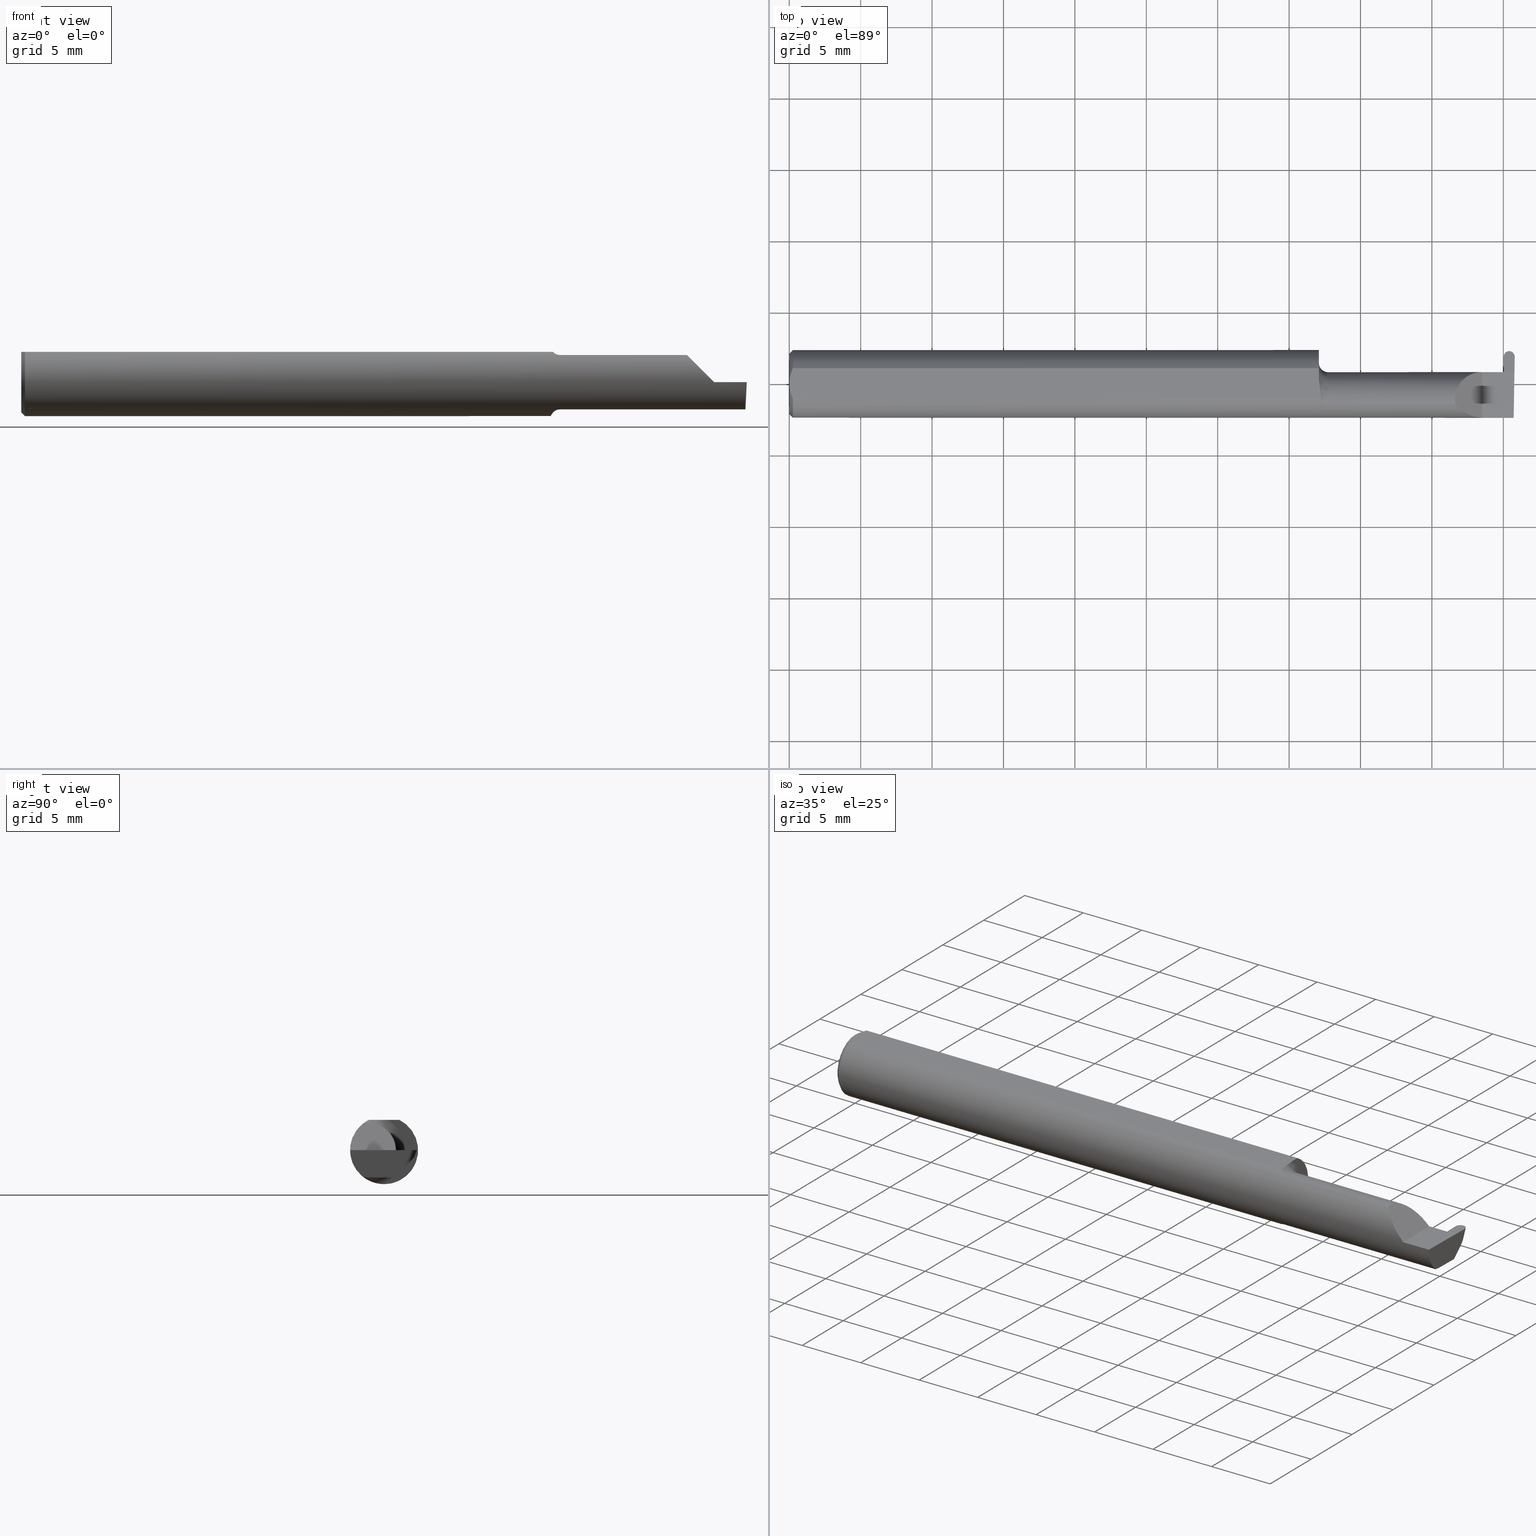
[diagram: canonical four-view strip — front | top / right | iso, engineering-drawing reading convention]
A machine part, canonical four-view strip (front | top / right | iso — engineering-drawing reading convention). The complete STEP part file that produces these views, byte-faithful:
ISO-10303-21;
HEADER;
FILE_DESCRIPTION (( 'STEP AP203' ),
    '1' );
FILE_NAME ('221834-GFR030K-8.STEP',
    '2024-06-17T19:39:33',
    ( '' ),
    ( '' ),
    'SwSTEP 2.0',
    'SolidWorks 2022',
    '' );
FILE_SCHEMA (( 'CONFIG_CONTROL_DESIGN' ));
ENDSEC;

DATA;
#1 = COORDINATED_UNIVERSAL_TIME_OFFSET ( 8, 0, .BEHIND. ) ;
#2 = ORIENTED_EDGE ( 'NONE', *, *, #592, .T. ) ;
#3 = B_SPLINE_CURVE_WITH_KNOTS ( 'NONE', 3,
 ( #567, #467, #75, #188 ),
 .UNSPECIFIED., .F., .F.,
 ( 4, 4 ),
 ( 0.000000000000000000, 1.000000000000000000 ),
 .UNSPECIFIED. ) ;
#4 = CARTESIAN_POINT ( 'NONE',  ( 1.969493928509964853, 0.1196567895122383207, 0.01717222396329657827 ) ) ;
#5 = DATE_AND_TIME ( #542, #233 ) ;
#6 = ORIENTED_EDGE ( 'NONE', *, *, #359, .F. ) ;
#7 = CARTESIAN_POINT ( 'NONE',  ( 1.984733980000000342, 0.08688529186597530873, -0.009656581234206245562 ) ) ;
#8 = DIRECTION ( 'NONE',  ( 0.9992386149554827179, 0.01744177490282312198, 0.03489949670250104552 ) ) ;
#9 = EDGE_CURVE ( 'NONE', #570, #230, #616, .T. ) ;
#10 = ORIENTED_EDGE ( 'NONE', *, *, #44, .T. ) ;
#11 = EDGE_LOOP ( 'NONE', ( #451, #492, #298 ) ) ;
#12 = APPROVAL_ROLE ( '' ) ;
#13 = ORIENTED_EDGE ( 'NONE', *, *, #642, .T. ) ;
#14 = EDGE_CURVE ( 'NONE', #170, #53, #31, .T. ) ;
#15 = CARTESIAN_POINT ( 'NONE',  ( 1.484999999999999876, -0.05810704225352104207, 0.07337936794867834511 ) ) ;
#16 = VERTEX_POINT ( 'NONE', #133 ) ;
#17 = VECTOR ( 'NONE', #671, 39.37007874015748854 ) ;
#18 = CARTESIAN_POINT ( 'NONE',  ( 0.000000000000000000, 0.000000000000000000, 0.000000000000000000 ) ) ;
#19 = CARTESIAN_POINT ( 'NONE',  ( 1.484999999999999876, -0.04260000000000005449, 0.000000000000000000 ) ) ;
#20 = CIRCLE ( 'NONE', #223, 0.09999999999999999167 ) ;
#21 = EDGE_CURVE ( 'NONE', #496, #45, #365, .T. ) ;
#22 = DIRECTION ( 'NONE',  ( 3.351349113377345711E-17, -1.000000000000000000, 0.000000000000000000 ) ) ;
#23 = CARTESIAN_POINT ( 'NONE',  ( 1.910000000000000142, -0.09360000000000005815, 1.102182119232621301E-17 ) ) ;
#24 = CARTESIAN_POINT ( 'NONE',  ( 1.981957002351928621, 0.04977477292115689567, -0.06702887695685075253 ) ) ;
#25 = CARTESIAN_POINT ( 'NONE',  ( 1.971325961646301028, 0.05785528259492387498, -0.04462928295401853707 ) ) ;
#26 = FACE_OUTER_BOUND ( 'NONE', #553, .T. ) ;
#27 = VERTEX_POINT ( 'NONE', #291 ) ;
#28 = DIRECTION ( 'NONE',  ( -0.03549161113179509497, 0.03487750912278161919, 0.9987611851171729338 ) ) ;
#29 = AXIS2_PLACEMENT_3D ( 'NONE', #147, #312, #82 ) ;
#30 = ORIENTED_EDGE ( 'NONE', *, *, #221, .F. ) ;
#31 = LINE ( 'NONE', #180, #626 ) ;
#32 = DIRECTION ( 'NONE',  ( 1.000000000000000000, 0.000000000000000000, 0.000000000000000000 ) ) ;
#33 = CARTESIAN_POINT ( 'NONE',  ( 2.000150782537319483, 0.08363908123938845751, -1.889248031255481802E-18 ) ) ;
#34 = LINE ( 'NONE', #518, #297 ) ;
#35 = DIRECTION ( 'NONE',  ( 0.000000000000000000, -1.000000000000000000, 0.000000000000000000 ) ) ;
#36 = CARTESIAN_POINT ( 'NONE',  ( 1.984733980000000342, 0.08346613280634004872, -0.01901843274260211006 ) ) ;
#37 = CARTESIAN_POINT ( 'NONE',  ( 0.01000000000000016674, -0.04209513035969864037, 0.08359999999999988274 ) ) ;
#38 = EDGE_LOOP ( 'NONE', ( #527, #118, #274, #308, #302 ) ) ;
#39 = TOROIDAL_SURFACE ( 'NONE', #449, 0.09999999999999999167, 0.02499999999999993894 ) ;
#40 = DIRECTION ( 'NONE',  ( -3.351349113377345711E-17, 1.000000000000000000, 0.000000000000000000 ) ) ;
#41 = VECTOR ( 'NONE', #655, 39.37007874015748143 ) ;
#42 = VERTEX_POINT ( 'NONE', #462 ) ;
#43 = CARTESIAN_POINT ( 'NONE',  ( 1.727233979999999836, -0.05810704225352107677, -0.07337936794867833123 ) ) ;
#44 = EDGE_CURVE ( 'NONE', #502, #691, #3, .T. ) ;
#45 = VERTEX_POINT ( 'NONE', #412 ) ;
#46 = CARTESIAN_POINT ( 'NONE',  ( 1.910000000000000142, -0.09360000000000005815, 1.102182119232621301E-17 ) ) ;
#47 = CALENDAR_DATE ( 2024, 17, 6 ) ;
#48 = VERTEX_POINT ( 'NONE', #36 ) ;
#49 = CARTESIAN_POINT ( 'NONE',  ( 0.004492168231814808177, 0.02859366993844194779, 0.08359999999999991049 ) ) ;
#50 = PLANE ( 'NONE',  #252 ) ;
#51 = CARTESIAN_POINT ( 'NONE',  ( 1.484999999999999876, -0.05810704225352104207, 0.07337936794867834511 ) ) ;
#52 = PERSON_AND_ORGANIZATION_ROLE ( 'creator' ) ;
#53 = VERTEX_POINT ( 'NONE', #25 ) ;
#54 = LINE ( 'NONE', #268, #674 ) ;
#55 = AXIS2_PLACEMENT_3D ( 'NONE', #353, #428, #192 ) ;
#56 = ORIENTED_EDGE ( 'NONE', *, *, #62, .T. ) ;
#57 = CARTESIAN_POINT ( 'NONE',  ( 1.984733980000000564, 0.08859046512939580675, -0.004971656196700772502 ) ) ;
#58 = EDGE_CURVE ( 'NONE', #48, #594, #137, .T. ) ;
#59 = ORIENTED_EDGE ( 'NONE', *, *, #680, .T. ) ;
#60 = PERSON_AND_ORGANIZATION ( #228, #405 ) ;
#61 = ORIENTED_EDGE ( 'NONE', *, *, #283, .T. ) ;
#62 = EDGE_CURVE ( 'NONE', #175, #335, #555, .T. ) ;
#63 = CARTESIAN_POINT ( 'NONE',  ( 1.984733980000000564, 0.08859046512939580675, -0.004971656196700772502 ) ) ;
#64 = ORIENTED_EDGE ( 'NONE', *, *, #21, .F. ) ;
#65 = PLANE ( 'NONE',  #210 ) ;
#66 = VERTEX_POINT ( 'NONE', #684 ) ;
#67 = CC_DESIGN_DATE_AND_TIME_ASSIGNMENT ( #612, #129, ( #276 ) ) ;
#68 =( BOUNDED_CURVE ( )  B_SPLINE_CURVE ( 3, ( #46, #381, #540, #216 ),
 .UNSPECIFIED., .F., .F. ) 
 B_SPLINE_CURVE_WITH_KNOTS ( ( 4, 4 ),
 ( 4.712388980384689674, 5.613420356061720184 ),
 .UNSPECIFIED. ) 
 CURVE ( )  GEOMETRIC_REPRESENTATION_ITEM ( )  RATIONAL_B_SPLINE_CURVE ( ( 1.000000000000000000, 0.9334817841311873199, 0.9334817841311873199, 1.000000000000000000 ) ) 
 REPRESENTATION_ITEM ( '' )  );
#69 = DIRECTION ( 'NONE',  ( 1.000000000000000000, 3.351349113377345711E-17, 0.000000000000000000 ) ) ;
#70 = EDGE_LOOP ( 'NONE', ( #88, #231, #453, #632, #214, #606 ) ) ;
#71 = EDGE_CURVE ( 'NONE', #124, #45, #698, .T. ) ;
#72 = DIRECTION ( 'NONE',  ( 0.000000000000000000, 0.000000000000000000, 1.000000000000000000 ) ) ;
#73 = AXIS2_PLACEMENT_3D ( 'NONE', #378, #485, #445 ) ;
#74 = PRODUCT_RELATED_PRODUCT_CATEGORY ( 'detail', '', ( #220 ) ) ;
#75 = CARTESIAN_POINT ( 'NONE',  ( 1.964138266443235414, 0.03233910125649559764, -0.001743911843603157931 ) ) ;
#76 = DIRECTION ( 'NONE',  ( 0.03490480639812536257, 0.000000000000000000, 0.9993906415863165194 ) ) ;
#77 = DIRECTION ( 'NONE',  ( -1.000000000000000000, -3.351349113377345711E-17, -0.000000000000000000 ) ) ;
#78 = VERTEX_POINT ( 'NONE', #349 ) ;
#79 = CARTESIAN_POINT ( 'NONE',  ( 2.115884466375952400, -0.04259999999999973530, -0.07500000000000002498 ) ) ;
#80 = ORIENTED_EDGE ( 'NONE', *, *, #95, .F. ) ;
#81 = EDGE_LOOP ( 'NONE', ( #93, #380, #108, #448, #387, #64, #441, #646, #56 ) ) ;
#82 = DIRECTION ( 'NONE',  ( 0.000000000000000000, -0.03489949670250104552, -0.9993908270190957621 ) ) ;
#83 = ADVANCED_FACE ( 'NONE', ( #240 ), #634, .T. ) ;
#84 = AXIS2_PLACEMENT_3D ( 'NONE', #544, #531, #480 ) ;
#85 = AXIS2_PLACEMENT_3D ( 'NONE', #494, #8, #323 ) ;
#86 = CARTESIAN_POINT ( 'NONE',  ( 1.998141998353699433, 0.05785528259492388886, -0.04462928295401852319 ) ) ;
#87 = DIRECTION ( 'NONE',  ( 0.000000000000000000, -0.9396926207859083169, 0.3420201433256689905 ) ) ;
#88 = ORIENTED_EDGE ( 'NONE', *, *, #303, .T. ) ;
#89 = CARTESIAN_POINT ( 'NONE',  ( 1.459999999999999964, 0.03239999999999997743, 6.613092715395735816E-17 ) ) ;
#90 = CC_DESIGN_PERSON_AND_ORGANIZATION_ASSIGNMENT ( #235, #564, ( #220 ) ) ;
#91 = DIRECTION ( 'NONE',  ( -1.000000000000000000, -0.000000000000000000, -0.000000000000000000 ) ) ;
#92 = CARTESIAN_POINT ( 'NONE',  ( 1.910000000000000142, -0.2500000000000000555, 1.102182119232621301E-17 ) ) ;
#93 = ORIENTED_EDGE ( 'NONE', *, *, #519, .F. ) ;
#94 = DIRECTION ( 'NONE',  ( 1.000000000000000000, -0.000000000000000000, -0.000000000000000000 ) ) ;
#95 = EDGE_CURVE ( 'NONE', #335, #162, #185, .T. ) ;
#96 = EDGE_LOOP ( 'NONE', ( #615, #589, #549, #377, #422, #640, #667, #636, #354, #543, #30, #116 ) ) ;
#97 = PLANE ( 'NONE',  #29 ) ;
#98 = ORIENTED_EDGE ( 'NONE', *, *, #178, .T. ) ;
#99 = DIRECTION ( 'NONE',  ( -0.02596452850600439177, 0.7068683906002057871, 0.7068683906002134476 ) ) ;
#100 = VECTOR ( 'NONE', #94, 39.37007874015748143 ) ;
#101 = APPROVAL ( #218, 'UNSPECIFIED' ) ;
#102 = APPROVAL_ROLE ( '' ) ;
#103 = ORIENTED_EDGE ( 'NONE', *, *, #58, .T. ) ;
#104 = CARTESIAN_POINT ( 'NONE',  ( 1.480292432600753383, -0.05747478081012625389, 0.07388601572377849480 ) ) ;
#105 = COORDINATED_UNIVERSAL_TIME_OFFSET ( 8, 0, .BEHIND. ) ;
#106 = ORIENTED_EDGE ( 'NONE', *, *, #95, .T. ) ;
#107 = CARTESIAN_POINT ( 'NONE',  ( -3.937007874019685528E-05, 0.02748456554894272708, -0.07500000000000002498 ) ) ;
#108 = ORIENTED_EDGE ( 'NONE', *, *, #513, .F. ) ;
#109 = DIRECTION ( 'NONE',  ( -0.001239419280281404273, 0.9999992319196288060, 0.000000000000000000 ) ) ;
#110 = LOCAL_TIME ( 12, 39, 33.00000000000000000, #105 ) ;
#111 = DATE_AND_TIME ( #47, #121 ) ;
#112 = PRODUCT_DEFINITION_SHAPE ( 'NONE', 'NONE',  #659 ) ;
#113 = CARTESIAN_POINT ( 'NONE',  ( 1.466129652885479473, -0.04209513035970119388, 0.08359999999999991049 ) ) ;
#114 =( LENGTH_UNIT ( ) NAMED_UNIT ( * ) SI_UNIT ( $, .METRE. ) );
#115 = CARTESIAN_POINT ( 'NONE',  ( 1.972879577618598335, 0.02748456554894272708, -0.07499999999999999722 ) ) ;
#116 = ORIENTED_EDGE ( 'NONE', *, *, #575, .F. ) ;
#117 = CARTESIAN_POINT ( 'NONE',  ( 1.459999999999999964, 0.03221730376948612334, -0.005231735530819085246 ) ) ;
#118 = ORIENTED_EDGE ( 'NONE', *, *, #452, .F. ) ;
#119 = CIRCLE ( 'NONE', #515, 0.09360000000000001652 ) ;
#120 = EDGE_CURVE ( 'NONE', #367, #332, #269, .T. ) ;
#121 = LOCAL_TIME ( 12, 39, 33.00000000000000000, #600 ) ;
#122 = CARTESIAN_POINT ( 'NONE',  ( 2.115884466375952400, -0.04259999999999973530, -0.07500000000000002498 ) ) ;
#123 = EDGE_LOOP ( 'NONE', ( #398, #409, #374 ) ) ;
#124 = VERTEX_POINT ( 'NONE', #408 ) ;
#125 = LINE ( 'NONE', #503, #41 ) ;
#126 = ORIENTED_EDGE ( 'NONE', *, *, #421, .F. ) ;
#127 = LINE ( 'NONE', #550, #139 ) ;
#128 = CARTESIAN_POINT ( 'NONE',  ( 1.970211558952576159, 0.03239999999999999825, 0.000000000000000000 ) ) ;
#129 = DATE_TIME_ROLE ( 'classification_date' ) ;
#130 = ORIENTED_EDGE ( 'NONE', *, *, #14, .T. ) ;
#131 = AXIS2_PLACEMENT_3D ( 'NONE', #18, #234, #652 ) ;
#132 = LINE ( 'NONE', #576, #100 ) ;
#133 = CARTESIAN_POINT ( 'NONE',  ( 1.484999999999999876, -0.05810704225352104901, -0.07337936794867834511 ) ) ;
#134 = CARTESIAN_POINT ( 'NONE',  ( 0.01000000000000016674, -0.04209513035969864037, 0.08359999999999988274 ) ) ;
#135 = EDGE_CURVE ( 'NONE', #322, #27, #285, .T. ) ;
#136 = CARTESIAN_POINT ( 'NONE',  ( 1.995364534437481741, -0.04049631676287023668, -0.07500000000000002498 ) ) ;
#137 =( BOUNDED_CURVE ( )  B_SPLINE_CURVE ( 3, ( #526, #511, #573, #86 ),
 .UNSPECIFIED., .F., .T. ) 
 B_SPLINE_CURVE_WITH_KNOTS ( ( 4, 4 ),
 ( 3.161533306497564144, 4.698770164224574053 ),
 .UNSPECIFIED. ) 
 CURVE ( )  GEOMETRIC_REPRESENTATION_ITEM ( )  RATIONAL_B_SPLINE_CURVE ( ( 1.000000000000000000, 0.8125811630039345701, 0.8125811630039345701, 1.000000000000000000 ) ) 
 REPRESENTATION_ITEM ( '' )  );
#138 = LINE ( 'NONE', #423, #683 ) ;
#139 = VECTOR ( 'NONE', #664, 39.37007874015748854 ) ;
#140 = CARTESIAN_POINT ( 'NONE',  ( 1.972966441847108232, -0.04260000000000003367, -0.07500000000000002498 ) ) ;
#141 = ORIENTED_EDGE ( 'NONE', *, *, #642, .F. ) ;
#142 = CARTESIAN_POINT ( 'NONE',  ( 0.000000000000000000, 0.000000000000000000, 0.000000000000000000 ) ) ;
#143 = VERTEX_POINT ( 'NONE', #656 ) ;
#144 = ADVANCED_FACE ( 'NONE', ( #388 ), #394, .T. ) ;
#145 = DIRECTION ( 'NONE',  ( 0.000000000000000000, 0.000000000000000000, -1.000000000000000000 ) ) ;
#146 = DIRECTION ( 'NONE',  ( 0.000000000000000000, 0.9396926207859083169, -0.3420201433256689350 ) ) ;
#147 = CARTESIAN_POINT ( 'NONE',  ( 1.970211558952576159, 0.03239999999999999825, 0.000000000000000000 ) ) ;
#148 = ORIENTED_EDGE ( 'NONE', *, *, #565, .F. ) ;
#149 = DESIGN_CONTEXT ( 'detailed design', #342, 'design' ) ;
#150 = CC_DESIGN_PERSON_AND_ORGANIZATION_ASSIGNMENT ( #376, #264, ( #276 ) ) ;
#151 = CARTESIAN_POINT ( 'NONE',  ( 0.000000000000000000, 0.000000000000000000, 0.08359999999999991049 ) ) ;
#152 = CARTESIAN_POINT ( 'NONE',  ( 1.998141998353699433, 0.05785528259492388886, -0.04462928295401852319 ) ) ;
#153 = LINE ( 'NONE', #43, #554 ) ;
#154 = APPROVAL_STATUS ( 'not_yet_approved' ) ;
#155 = ORIENTED_EDGE ( 'NONE', *, *, #135, .F. ) ;
#156 = CARTESIAN_POINT ( 'NONE',  ( 1.972966661392082655, -0.04277713521904633054, -0.07500000000000002498 ) ) ;
#157 = VECTOR ( 'NONE', #198, 39.37007874015748854 ) ;
#158 = SECURITY_CLASSIFICATION_LEVEL ( 'unclassified' ) ;
#159 = ORIENTED_EDGE ( 'NONE', *, *, #465, .T. ) ;
#160 = CARTESIAN_POINT ( 'NONE',  ( 1.461762116932663336, -0.02818790137206265284, -0.08941930521177111901 ) ) ;
#161 = EDGE_CURVE ( 'NONE', #332, #27, #179, .T. ) ;
#162 = VERTEX_POINT ( 'NONE', #63 ) ;
#163 = DIRECTION ( 'NONE',  ( 0.000000000000000000, 0.000000000000000000, -1.000000000000000000 ) ) ;
#164 = CARTESIAN_POINT ( 'NONE',  ( 1.964199165186739648, 0.03239999999999999825, 0.000000000000000000 ) ) ;
#165 = ORIENTED_EDGE ( 'NONE', *, *, #631, .F. ) ;
#166 = CARTESIAN_POINT ( 'NONE',  ( 1.466206319820905213, -0.04283575577410227847, -0.08338874798717356429 ) ) ;
#167 = VECTOR ( 'NONE', #404, 39.37007874015748143 ) ;
#168 = VECTOR ( 'NONE', #514, 39.37007874015748143 ) ;
#169 = PLANE ( 'NONE',  #85 ) ;
#170 = VERTEX_POINT ( 'NONE', #603 ) ;
#171 = CARTESIAN_POINT ( 'NONE',  ( 0.000000000000000000, 0.04209513035969864037, 0.08359999999999988274 ) ) ;
#172 = LENGTH_MEASURE_WITH_UNIT ( LENGTH_MEASURE( 0.02539999999999999897 ), #114 );
#173 = VERTEX_POINT ( 'NONE', #115 ) ;
#174 = APPROVAL ( #154, 'UNSPECIFIED' ) ;
#175 = VERTEX_POINT ( 'NONE', #309 ) ;
#176 = AXIS2_PLACEMENT_3D ( 'NONE', #528, #358, #522 ) ;
#177 = EDGE_LOOP ( 'NONE', ( #275, #424, #222, #580, #362, #479 ) ) ;
#178 = EDGE_CURVE ( 'NONE', #280, #124, #225, .T. ) ;
#179 = B_SPLINE_CURVE_WITH_KNOTS ( 'NONE', 3,
 ( #254, #548, #431, #49, #442, #386 ),
 .UNSPECIFIED., .F., .F.,
 ( 4, 2, 4 ),
 ( 0.001744210492668864416, 0.002295110172257193264, 0.002846009851845522111 ),
 .UNSPECIFIED. ) ;
#180 = CARTESIAN_POINT ( 'NONE',  ( 1.969473499029860131, 0.07418895767924951756, 0.0002471205168746623527 ) ) ;
#181 = AXIS2_PLACEMENT_3D ( 'NONE', #458, #343, #236 ) ;
#182 = APPROVAL_PERSON_ORGANIZATION ( #545, #101, #382 ) ;
#183 = EDGE_CURVE ( 'NONE', #653, #609, #401, .T. ) ;
#184 = LINE ( 'NONE', #571, #266 ) ;
#185 = LINE ( 'NONE', #237, #17 ) ;
#186 = DIRECTION ( 'NONE',  ( -0.03701368837992446981, 0.7066222423871552083, 0.7066222423871628688 ) ) ;
#187 = CARTESIAN_POINT ( 'NONE',  ( 1.964016468956226502, 0.03221730376948681029, -0.005231735530809482684 ) ) ;
#188 = CARTESIAN_POINT ( 'NONE',  ( 1.964199165186739648, 0.03239999999999999825, 0.000000000000000000 ) ) ;
#189 = DIRECTION ( 'NONE',  ( 0.000000000000000000, 0.000000000000000000, 1.000000000000000000 ) ) ;
#190 = LINE ( 'NONE', #417, #168 ) ;
#191 = ORIENTED_EDGE ( 'NONE', *, *, #272, .T. ) ;
#192 = DIRECTION ( 'NONE',  ( 0.000000000000000000, -1.000000000000000000, 0.000000000000000000 ) ) ;
#193 = EDGE_CURVE ( 'NONE', #694, #502, #368, .T. ) ;
#194 = CLOSED_SHELL ( 'NONE', ( #670, #383, #328, #316, #539, #262, #144, #289, #370, #217, #596, #213, #430, #651, #400, #267, #344, #83, #391 ) ) ;
#195 = VECTOR ( 'NONE', #304, 39.37007874015748143 ) ;
#196 = LINE ( 'NONE', #79, #420 ) ;
#197 = CARTESIAN_POINT ( 'NONE',  ( 1.984939206054983751, 0.09039999999999999425, 0.000000000000000000 ) ) ;
#198 = DIRECTION ( 'NONE',  ( -0.01745240643727633684, -0.9998476951563912696, 0.000000000000000000 ) ) ;
#199 = PERSON_AND_ORGANIZATION ( #228, #405 ) ;
#200 = ORIENTED_EDGE ( 'NONE', *, *, #120, .T. ) ;
#201 = CARTESIAN_POINT ( 'NONE',  ( 1.995236768857725718, -0.04781600192481505474, -0.07500000000000005274 ) ) ;
#202 = CARTESIAN_POINT ( 'NONE',  ( 1.459999999999999964, -0.01220003991882283832, -0.09296180880970876526 ) ) ;
#203 = CARTESIAN_POINT ( 'NONE',  ( 1.981547166899399359, 0.1023591649057441905, 0.07744555263655338029 ) ) ;
#204 = APPLICATION_PROTOCOL_DEFINITION ( 'international standard', 'config_control_design', 1994, #342 ) ;
#205 = EDGE_LOOP ( 'NONE', ( #629, #613, #141, #536 ) ) ;
#206 = CARTESIAN_POINT ( 'NONE',  ( 1.970397471987413995, 0.03221730376948542252, -0.005231735530809524318 ) ) ;
#207 =( BOUNDED_CURVE ( )  B_SPLINE_CURVE ( 3, ( #355, #473, #259, #206 ),
 .UNSPECIFIED., .F., .T. ) 
 B_SPLINE_CURVE_WITH_KNOTS ( ( 4, 4 ),
 ( 3.176499238629678867, 4.677482395344799038 ),
 .UNSPECIFIED. ) 
 CURVE ( )  GEOMETRIC_REPRESENTATION_ITEM ( )  RATIONAL_B_SPLINE_CURVE ( ( 1.000000000000000000, 0.8209024677461143060, 0.8209024677461143060, 1.000000000000000000 ) ) 
 REPRESENTATION_ITEM ( '' )  );
#208 = PERSON_AND_ORGANIZATION_ROLE ( 'creator' ) ;
#209 = VERTEX_POINT ( 'NONE', #682 ) ;
#210 = AXIS2_PLACEMENT_3D ( 'NONE', #504, #562, #76 ) ;
#211 = CARTESIAN_POINT ( 'NONE',  ( 2.387527623501553705E-17, -0.01462709520273675068, 0.08359999999999991049 ) ) ;
#212 = APPROVAL_PERSON_ORGANIZATION ( #60, #403, #12 ) ;
#213 = ADVANCED_FACE ( 'NONE', ( #402 ), #229, .F. ) ;
#214 = ORIENTED_EDGE ( 'NONE', *, *, #161, .F. ) ;
#215 =( BOUNDED_CURVE ( )  B_SPLINE_CURVE ( 3, ( #426, #350, #675, #244 ),
 .UNSPECIFIED., .F., .F. ) 
 B_SPLINE_CURVE_WITH_KNOTS ( ( 4, 4 ),
 ( 0.2063001339125335731, 1.107331509589563945 ),
 .UNSPECIFIED. ) 
 CURVE ( )  GEOMETRIC_REPRESENTATION_ITEM ( )  RATIONAL_B_SPLINE_CURVE ( ( 1.000000000000000000, 0.9334817841311873199, 0.9334817841311873199, 1.000000000000000000 ) ) 
 REPRESENTATION_ITEM ( '' )  );
#216 = CARTESIAN_POINT ( 'NONE',  ( 1.836620632051321200, -0.05810704225352102820, 0.07337936794867834511 ) ) ;
#217 = ADVANCED_FACE ( 'NONE', ( #399 ), #39, .F. ) ;
#218 = APPROVAL_STATUS ( 'not_yet_approved' ) ;
#219 = CARTESIAN_POINT ( 'NONE',  ( 1.462856118429613828, -0.03323074941465640336, -0.08766015375840491286 ) ) ;
#220 = PRODUCT ( '221834-GFR030K-8', '221834-GFR030K-8', '', ( #338 ) ) ;
#221 = EDGE_CURVE ( 'NONE', #597, #209, #119, .T. ) ;
#222 = ORIENTED_EDGE ( 'NONE', *, *, #525, .T. ) ;
#223 = AXIS2_PLACEMENT_3D ( 'NONE', #407, #627, #35 ) ;
#224 = FACE_OUTER_BOUND ( 'NONE', #604, .T. ) ;
#225 = LINE ( 'NONE', #450, #313 ) ;
#226 = ORIENTED_EDGE ( 'NONE', *, *, #363, .T. ) ;
#227 = APPLICATION_CONTEXT ( 'configuration controlled 3d designs of mechanical parts and assemblies' ) ;
#228 = PERSON ( 'UNSPECIFIED', 'UNSPECIFIED', 'UNSPECIFIED', ('UNSPECIFIED'), ('UNSPECIFIED'), ('UNSPECIFIED') ) ;
#229 = PLANE ( 'NONE',  #345 ) ;
#230 = VERTEX_POINT ( 'NONE', #457 ) ;
#231 = ORIENTED_EDGE ( 'NONE', *, *, #9, .T. ) ;
#232 = EDGE_CURVE ( 'NONE', #691, #253, #614, .T. ) ;
#233 = LOCAL_TIME ( 12, 39, 33.00000000000000000, #535 ) ;
#234 = DIRECTION ( 'NONE',  ( 0.000000000000000000, 0.000000000000000000, 1.000000000000000000 ) ) ;
#235 = PERSON_AND_ORGANIZATION ( #228, #405 ) ;
#236 = DIRECTION ( 'NONE',  ( 1.000000000000000000, 0.000000000000000000, -0.000000000000000000 ) ) ;
#237 = CARTESIAN_POINT ( 'NONE',  ( 1.981957002351929287, 0.06410508538814199686, -0.07224468414256721149 ) ) ;
#238 = DIRECTION ( 'NONE',  ( 0.000000000000000000, 1.000000000000000000, 0.000000000000000000 ) ) ;
#239 = PLANE ( 'NONE',  #243 ) ;
#240 = FACE_OUTER_BOUND ( 'NONE', #489, .T. ) ;
#241 = AXIS2_PLACEMENT_3D ( 'NONE', #677, #569, #469 ) ;
#242 = CARTESIAN_POINT ( 'NONE',  ( 1.910000000000000142, -0.2500000000000000555, 1.102182119232621301E-17 ) ) ;
#243 = AXIS2_PLACEMENT_3D ( 'NONE', #360, #461, #524 ) ;
#244 = CARTESIAN_POINT ( 'NONE',  ( 1.997057062866469668, -0.09360000000000001652, 0.000000000000000000 ) ) ;
#245 = CARTESIAN_POINT ( 'NONE',  ( 0.000000000000000000, -0.04209513035969864037, 0.08359999999999988274 ) ) ;
#246 = CARTESIAN_POINT ( 'NONE',  ( 1.825958805822864628, -0.007655250284932078528, 0.08404119417713461215 ) ) ;
#247 = DIRECTION ( 'NONE',  ( -0.7071067811865442421, 0.000000000000000000, -0.7071067811865509034 ) ) ;
#248 = CARTESIAN_POINT ( 'NONE',  ( 1.969317177462681423, 0.08363908123938847139, 1.889248031255481417E-18 ) ) ;
#249 = CARTESIAN_POINT ( 'NONE',  ( 1.999984260029693539, 0.07409901316683065176, 0.000000000000000000 ) ) ;
#250 = CYLINDRICAL_SURFACE ( 'NONE', #55, 0.07500000000000003886 ) ;
#251 = VECTOR ( 'NONE', #278, 39.37007874015748143 ) ;
#252 = AXIS2_PLACEMENT_3D ( 'NONE', #696, #255, #40 ) ;
#253 = VERTEX_POINT ( 'NONE', #128 ) ;
#254 = CARTESIAN_POINT ( 'NONE',  ( 0.000000000000000000, 0.000000000000000000, 0.08359999999999991049 ) ) ;
#255 = DIRECTION ( 'NONE',  ( 1.000000000000000000, 3.351349113377345711E-17, 0.000000000000000000 ) ) ;
#256 = FACE_OUTER_BOUND ( 'NONE', #265, .T. ) ;
#257 = EDGE_LOOP ( 'NONE', ( #429, #583, #10, #414 ) ) ;
#258 = DIRECTION ( 'NONE',  ( 0.000000000000000000, 0.000000000000000000, -1.000000000000000000 ) ) ;
#259 = CARTESIAN_POINT ( 'NONE',  ( 1.971871808257659398, 0.02931965133412149649, -0.04667009593691545666 ) ) ;
#260 = CARTESIAN_POINT ( 'NONE',  ( 1.476308147845286189, -0.05549979236676341743, 0.07538081185522381433 ) ) ;
#261 = ORIENTED_EDGE ( 'NONE', *, *, #62, .F. ) ;
#262 = ADVANCED_FACE ( 'NONE', ( #406 ), #665, .T. ) ;
#263 = CARTESIAN_POINT ( 'NONE',  ( 1.459999999999999964, -0.006757276995305246635, -0.09335576686851605743 ) ) ;
#264 = PERSON_AND_ORGANIZATION_ROLE ( 'classification_officer' ) ;
#265 = EDGE_LOOP ( 'NONE', ( #165, #325, #340, #538, #418 ) ) ;
#266 = VECTOR ( 'NONE', #633, 39.37007874015748854 ) ;
#267 = ADVANCED_FACE ( 'NONE', ( #669 ), #65, .F. ) ;
#268 = CARTESIAN_POINT ( 'NONE',  ( 1.996745115830019568, 0.03118762788560754812, -0.07129693766333514149 ) ) ;
#269 = B_SPLINE_CURVE_WITH_KNOTS ( 'NONE', 3,
 ( #134, #352, #211, #151 ),
 .UNSPECIFIED., .F., .F.,
 ( 4, 4 ),
 ( 0.0006429768761302093617, 0.001744210492668864416 ),
 .UNSPECIFIED. ) ;
#270 = ORIENTED_EDGE ( 'NONE', *, *, #272, .F. ) ;
#271 = DIRECTION ( 'NONE',  ( 1.000000000000000000, -0.000000000000000000, -0.000000000000000000 ) ) ;
#272 = EDGE_CURVE ( 'NONE', #484, #332, #585, .T. ) ;
#273 =( CONVERSION_BASED_UNIT ( 'INCH', #172 ) LENGTH_UNIT ( ) NAMED_UNIT ( #547 ) );
#274 = ORIENTED_EDGE ( 'NONE', *, *, #9, .F. ) ;
#275 = ORIENTED_EDGE ( 'NONE', *, *, #601, .F. ) ;
#276 = SECURITY_CLASSIFICATION ( '', '', #158 ) ;
#277 = CARTESIAN_POINT ( 'NONE',  ( 1.970397471987413995, 0.03221730376948542252, -0.005231735530809524318 ) ) ;
#278 = DIRECTION ( 'NONE',  ( -1.000000000000000000, -3.351349113377345711E-17, -0.000000000000000000 ) ) ;
#279 = COORDINATED_UNIVERSAL_TIME_OFFSET ( 8, 0, .BEHIND. ) ;
#280 = VERTEX_POINT ( 'NONE', #15 ) ;
#281 = DIRECTION ( 'NONE',  ( 0.000000000000000000, 0.000000000000000000, -1.000000000000000000 ) ) ;
#282 = ORIENTED_EDGE ( 'NONE', *, *, #44, .F. ) ;
#283 = EDGE_CURVE ( 'NONE', #653, #16, #153, .T. ) ;
#284 =( BOUNDED_CURVE ( )  B_SPLINE_CURVE ( 3, ( #299, #470, #248, #520 ),
 .UNSPECIFIED., .F., .F. ) 
 B_SPLINE_CURVE_WITH_KNOTS ( ( 4, 4 ),
 ( 6.177091236414002928, 7.752341154236729537 ),
 .UNSPECIFIED. ) 
 CURVE ( )  GEOMETRIC_REPRESENTATION_ITEM ( )  RATIONAL_B_SPLINE_CURVE ( ( 1.000000000000000000, 0.8036869647627065127, 0.8036869647627065127, 1.000000000000000000 ) ) 
 REPRESENTATION_ITEM ( '' )  );
#285 = CIRCLE ( 'NONE', #474, 0.09360000000000001652 ) ;
#286 = VECTOR ( 'NONE', #91, 39.37007874015748143 ) ;
#287 = CARTESIAN_POINT ( 'NONE',  ( 1.970211558952576159, 0.03239999999999999825, 0.000000000000000000 ) ) ;
#288 = CARTESIAN_POINT ( 'NONE',  ( 1.836620632051321200, -0.05810704225352102820, 0.07337936794867834511 ) ) ;
#289 = ADVANCED_FACE ( 'NONE', ( #512 ), #477, .F. ) ;
#290 = DIRECTION ( 'NONE',  ( -0.01745240643727633684, -0.9998476951563912696, 0.000000000000000000 ) ) ;
#291 = CARTESIAN_POINT ( 'NONE',  ( 0.01000000000000016674, 0.04209513035969864037, 0.08359999999999988274 ) ) ;
#292 = CARTESIAN_POINT ( 'NONE',  ( 1.970211558952576159, 0.03239999999999999825, 0.000000000000000000 ) ) ;
#293 = DIRECTION ( 'NONE',  ( -1.000000000000000000, -0.000000000000000000, -0.000000000000000000 ) ) ;
#294 = CARTESIAN_POINT ( 'NONE',  ( 1.461463898467976863, -0.005727447913487265958, 0.08359999999999991049 ) ) ;
#295 = AXIS2_PLACEMENT_3D ( 'NONE', #242, #247, #679 ) ;
#296 = CARTESIAN_POINT ( 'NONE',  ( 1.984939206054983751, 0.09039999999999999425, 0.000000000000000000 ) ) ;
#297 = VECTOR ( 'NONE', #186, 39.37007874015748143 ) ;
#298 = ORIENTED_EDGE ( 'NONE', *, *, #21, .T. ) ;
#299 = CARTESIAN_POINT ( 'NONE',  ( 1.984528753945016932, 0.09039999999999999425, 0.000000000000000000 ) ) ;
#300 = CARTESIAN_POINT ( 'NONE',  ( 1.460000000000000187, 0.003280657920457281333, 0.08359999999999991049 ) ) ;
#301 = LINE ( 'NONE', #89, #487 ) ;
#302 = ORIENTED_EDGE ( 'NONE', *, *, #507, .T. ) ;
#303 = EDGE_CURVE ( 'NONE', #367, #570, #532, .T. ) ;
#304 = DIRECTION ( 'NONE',  ( -0.01745240643727647215, 0.9998476951563912696, -0.000000000000000000 ) ) ;
#305 = ORIENTED_EDGE ( 'NONE', *, *, #396, .T. ) ;
#306 = DIRECTION ( 'NONE',  ( 1.000000000000000000, 0.000000000000000000, 0.000000000000000000 ) ) ;
#307 =( BOUNDED_CURVE ( )  B_SPLINE_CURVE ( 3, ( #57, #7, #654, #310 ),
 .UNSPECIFIED., .F., .F. ) 
 B_SPLINE_CURVE_WITH_KNOTS ( ( 4, 4 ),
 ( 1.570796326794928977, 1.608809386890629023 ),
 .UNSPECIFIED. ) 
 CURVE ( )  GEOMETRIC_REPRESENTATION_ITEM ( )  RATIONAL_B_SPLINE_CURVE ( ( 1.000000000000000000, 0.9998795875634766128, 0.9998795875634766128, 1.000000000000000000 ) ) 
 REPRESENTATION_ITEM ( '' )  );
#308 = ORIENTED_EDGE ( 'NONE', *, *, #413, .T. ) ;
#309 = CARTESIAN_POINT ( 'NONE',  ( 1.999984260029693539, 0.07409901316683065176, 0.000000000000000000 ) ) ;
#310 = CARTESIAN_POINT ( 'NONE',  ( 1.984733980000000342, 0.08346613280634004872, -0.01901843274260211006 ) ) ;
#311 = CC_DESIGN_DATE_AND_TIME_ASSIGNMENT ( #5, #488, ( #659 ) ) ;
#312 = DIRECTION ( 'NONE',  ( 7.095197676277282976E-16, -0.9993908270190957621, 0.03489949670250104552 ) ) ;
#313 = VECTOR ( 'NONE', #605, 39.37007874015748143 ) ;
#314 = ORIENTED_EDGE ( 'NONE', *, *, #497, .F. ) ;
#315 = CARTESIAN_POINT ( 'NONE',  ( 1.976063894922528208, 0.08291310012426172937, -0.01957146542468043635 ) ) ;
#316 = ADVANCED_FACE ( 'NONE', ( #574 ), #361, .F. ) ;
#317 = ORIENTED_EDGE ( 'NONE', *, *, #446, .F. ) ;
#318 = DIRECTION ( 'NONE',  ( 1.000000000000000000, 0.000000000000000000, 0.000000000000000000 ) ) ;
#319 = CARTESIAN_POINT ( 'NONE',  ( 1.466129652885479473, -0.04209513035970119388, 0.08359999999999991049 ) ) ;
#320 = CARTESIAN_POINT ( 'NONE',  ( 1.482603832840145186, -0.05810704225352097962, 0.07337936794867833123 ) ) ;
#321 = EDGE_CURVE ( 'NONE', #42, #694, #138, .T. ) ;
#322 = VERTEX_POINT ( 'NONE', #582 ) ;
#323 = DIRECTION ( 'NONE',  ( 0.03490480639812536257, 0.000000000000000000, -0.9993906415863165194 ) ) ;
#324 = PERSON_AND_ORGANIZATION ( #228, #405 ) ;
#325 = ORIENTED_EDGE ( 'NONE', *, *, #14, .F. ) ;
#326 = VECTOR ( 'NONE', #28, 39.37007874015748143 ) ;
#327 = CARTESIAN_POINT ( 'NONE',  ( 1.970563718872777370, 0.07240713412461576015, -0.03007743142432650965 ) ) ;
#328 = ADVANCED_FACE ( 'NONE', ( #472 ), #625, .T. ) ;
#329 = EDGE_LOOP ( 'NONE', ( #226, #560, #103, #688, #416, #13 ) ) ;
#330 = EDGE_CURVE ( 'NONE', #45, #691, #301, .T. ) ;
#331 = CARTESIAN_POINT ( 'NONE',  ( 1.470033121973953305, -0.04963861219531612995, 0.07943694244057655784 ) ) ;
#332 = VERTEX_POINT ( 'NONE', #690 ) ;
#333 = EDGE_LOOP ( 'NONE', ( #317, #505, #557, #155 ) ) ;
#334 = CARTESIAN_POINT ( 'NONE',  ( 1.995113740419715231, -0.05810704225352106983, -0.07337936794867833123 ) ) ;
#335 = VERTEX_POINT ( 'NONE', #296 ) ;
#336 = AXIS2_PLACEMENT_3D ( 'NONE', #375, #650, #163 ) ;
#337 = EDGE_CURVE ( 'NONE', #78, #609, #415, .T. ) ;
#338 = MECHANICAL_CONTEXT ( 'NONE', #227, 'mechanical' ) ;
#339 = CARTESIAN_POINT ( 'NONE',  ( 1.459999999999999964, 0.000000000000000000, 0.000000000000000000 ) ) ;
#340 = ORIENTED_EDGE ( 'NONE', *, *, #478, .F. ) ;
#341 = ORIENTED_EDGE ( 'NONE', *, *, #193, .F. ) ;
#342 = APPLICATION_CONTEXT ( 'configuration controlled 3d designs of mechanical parts and assemblies' ) ;
#343 = DIRECTION ( 'NONE',  ( 0.000000000000000000, 0.000000000000000000, 1.000000000000000000 ) ) ;
#344 = ADVANCED_FACE ( 'NONE', ( #371 ), #686, .F. ) ;
#345 = AXIS2_PLACEMENT_3D ( 'NONE', #122, #72, #347 ) ;
#346 = CIRCLE ( 'NONE', #84, 0.08359999999999989662 ) ;
#347 = DIRECTION ( 'NONE',  ( 1.000000000000000000, 0.000000000000000000, -0.000000000000000000 ) ) ;
#348 = LINE ( 'NONE', #563, #372 ) ;
#349 = CARTESIAN_POINT ( 'NONE',  ( 1.996551145152111628, 0.02748456554894272708, -0.07500000000000002498 ) ) ;
#350 = CARTESIAN_POINT ( 'NONE',  ( 1.995346537079453419, -0.08092595952420826577, -0.05530971394246250034 ) ) ;
#351 = EDGE_LOOP ( 'NONE', ( #59, #191 ) ) ;
#352 = CARTESIAN_POINT ( 'NONE',  ( 0.004072204388638868758, -0.02891446873729324601, 0.08359999999999991049 ) ) ;
#353 = CARTESIAN_POINT ( 'NONE',  ( 1.459999999999999964, -0.04260000000000005449, 0.000000000000000000 ) ) ;
#354 = ORIENTED_EDGE ( 'NONE', *, *, #135, .T. ) ;
#355 = CARTESIAN_POINT ( 'NONE',  ( 1.972966441847108232, -0.04260000000000003367, -0.07500000000000002498 ) ) ;
#356 = CARTESIAN_POINT ( 'NONE',  ( 1.466082007218903360, -0.03301619840524121219, 0.08359999999999991049 ) ) ;
#357 = CIRCLE ( 'NONE', #572, 0.09360000000000001652 ) ;
#358 = DIRECTION ( 'NONE',  ( 0.9993699743034455407, 0.001238639365660605890, 0.03546999060124694098 ) ) ;
#359 = EDGE_CURVE ( 'NONE', #367, #322, #357, .T. ) ;
#360 = CARTESIAN_POINT ( 'NONE',  ( 2.000000000000000000, -0.2500000000000000555, 0.000000000000000000 ) ) ;
#361 = PLANE ( 'NONE',  #295 ) ;
#362 = ORIENTED_EDGE ( 'NONE', *, *, #183, .T. ) ;
#363 = EDGE_CURVE ( 'NONE', #42, #53, #34, .T. ) ;
#364 = DIRECTION ( 'NONE',  ( 0.000000000000000000, -1.000000000000000000, 0.000000000000000000 ) ) ;
#365 = LINE ( 'NONE', #92, #167 ) ;
#366 = DIRECTION ( 'NONE',  ( -1.000000000000000000, -3.351349113377345711E-17, -0.000000000000000000 ) ) ;
#367 = VERTEX_POINT ( 'NONE', #37 ) ;
#368 = LINE ( 'NONE', #117, #251 ) ;
#369 = DIRECTION ( 'NONE',  ( -0.03701368837992437266, -0.7066222423871552083, -0.7066222423871628688 ) ) ;
#370 = ADVANCED_FACE ( 'NONE', ( #622 ), #250, .T. ) ;
#371 = FACE_OUTER_BOUND ( 'NONE', #205, .T. ) ;
#372 = VECTOR ( 'NONE', #290, 39.37007874015748143 ) ;
#373 = DATE_AND_TIME ( #593, #110 ) ;
#374 = ORIENTED_EDGE ( 'NONE', *, *, #452, .T. ) ;
#375 = CARTESIAN_POINT ( 'NONE',  ( 0.000000000000000000, 0.000000000000000000, 0.000000000000000000 ) ) ;
#376 = PERSON_AND_ORGANIZATION ( #228, #405 ) ;
#377 = ORIENTED_EDGE ( 'NONE', *, *, #568, .T. ) ;
#378 = CARTESIAN_POINT ( 'NONE',  ( -3.937007874019685528E-05, 0.08348456554894213844, -0.01899999999999999953 ) ) ;
#379 = PERSON_AND_ORGANIZATION ( #228, #405 ) ;
#380 = ORIENTED_EDGE ( 'NONE', *, *, #478, .T. ) ;
#381 = CARTESIAN_POINT ( 'NONE',  ( 1.880893035518782730, -0.09359999999999997489, 0.02910696448121682239 ) ) ;
#382 = APPROVAL_ROLE ( '' ) ;
#383 = ADVANCED_FACE ( 'NONE', ( #635 ), #97, .F. ) ;
#384 = AXIS2_PLACEMENT_3D ( 'NONE', #578, #87, #491 ) ;
#385 = PLANE ( 'NONE',  #73 ) ;
#386 = CARTESIAN_POINT ( 'NONE',  ( 0.01000000000000016674, 0.04209513035969864037, 0.08359999999999988274 ) ) ;
#387 = ORIENTED_EDGE ( 'NONE', *, *, #330, .F. ) ;
#388 = FACE_OUTER_BOUND ( 'NONE', #333, .T. ) ;
#389 = DATE_AND_TIME ( #559, #486 ) ;
#390 = LINE ( 'NONE', #171, #286 ) ;
#391 = ADVANCED_FACE ( 'NONE', ( #256 ), #481, .T. ) ;
#392 = CALENDAR_DATE ( 2024, 17, 6 ) ;
#393 = ORIENTED_EDGE ( 'NONE', *, *, #519, .T. ) ;
#394 = CONICAL_SURFACE ( 'NONE', #617, 0.08359999999999989662, 0.7853981633974458365 ) ;
#395 = AXIS2_PLACEMENT_3D ( 'NONE', #203, #434, #639 ) ;
#396 = EDGE_CURVE ( 'NONE', #694, #253, #587, .T. ) ;
#397 = DIRECTION ( 'NONE',  ( -1.000000000000000000, -3.351349113377345711E-17, -0.000000000000000000 ) ) ;
#398 = ORIENTED_EDGE ( 'NONE', *, *, #221, .T. ) ;
#399 = FACE_OUTER_BOUND ( 'NONE', #38, .T. ) ;
#400 = ADVANCED_FACE ( 'NONE', ( #224 ), #169, .F. ) ;
#401 =( BOUNDED_CURVE ( )  B_SPLINE_CURVE ( 3, ( #334, #552, #201, #637 ),
 .UNSPECIFIED., .F., .F. ) 
 B_SPLINE_CURVE_WITH_KNOTS ( ( 4, 4 ),
 ( 0.2552020043920786851, 0.4634648172053384974 ),
 .UNSPECIFIED. ) 
 CURVE ( )  GEOMETRIC_REPRESENTATION_ITEM ( )  RATIONAL_B_SPLINE_CURVE ( ( 1.000000000000000000, 0.9963888149483994816, 0.9963888149483994816, 1.000000000000000000 ) ) 
 REPRESENTATION_ITEM ( '' )  );
#402 = FACE_OUTER_BOUND ( 'NONE', #482, .T. ) ;
#403 = APPROVAL ( #657, 'UNSPECIFIED' ) ;
#404 = DIRECTION ( 'NONE',  ( -0.000000000000000000, 1.000000000000000000, -0.000000000000000000 ) ) ;
#405 = ORGANIZATION ( 'UNSPECIFIED', 'UNSPECIFIED', '' ) ;
#406 = FACE_OUTER_BOUND ( 'NONE', #70, .T. ) ;
#407 = CARTESIAN_POINT ( 'NONE',  ( 1.459999999999999964, -0.04260000000000005449, 0.000000000000000000 ) ) ;
#408 = CARTESIAN_POINT ( 'NONE',  ( 1.836620632051321200, -0.05810704225352102820, 0.07337936794867834511 ) ) ;
#409 = ORIENTED_EDGE ( 'NONE', *, *, #692, .F. ) ;
#410 = CARTESIAN_POINT ( 'NONE',  ( 0.01000000000000016674, 0.000000000000000000, 0.000000000000000000 ) ) ;
#411 = CARTESIAN_POINT ( 'NONE',  ( 2.999519565323742037E-32, -0.09359999999999998876, 2.449293598294716768E-16 ) ) ;
#412 = CARTESIAN_POINT ( 'NONE',  ( 1.910000000000000142, 0.03239999999999999131, 6.613092715395735816E-17 ) ) ;
#413 = EDGE_CURVE ( 'NONE', #570, #280, #475, .T. ) ;
#414 = ORIENTED_EDGE ( 'NONE', *, *, #232, .T. ) ;
#415 = LINE ( 'NONE', #136, #157 ) ;
#416 = ORIENTED_EDGE ( 'NONE', *, *, #592, .F. ) ;
#417 = CARTESIAN_POINT ( 'NONE',  ( 0.000000000000000000, 0.000000000000000000, -0.08359999999999989662 ) ) ;
#418 = ORIENTED_EDGE ( 'NONE', *, *, #673, .T. ) ;
#419 = AXIS2_PLACEMENT_3D ( 'NONE', #24, #621, #146 ) ;
#420 = VECTOR ( 'NONE', #293, 39.37007874015748143 ) ;
#421 = EDGE_CURVE ( 'NONE', #594, #175, #127, .T. ) ;
#422 = ORIENTED_EDGE ( 'NONE', *, *, #178, .F. ) ;
#423 = CARTESIAN_POINT ( 'NONE',  ( 1.970211558952576159, 0.03239999999999999825, 0.000000000000000000 ) ) ;
#424 = ORIENTED_EDGE ( 'NONE', *, *, #421, .T. ) ;
#425 = DIRECTION ( 'NONE',  ( 1.000000000000000000, 0.000000000000000000, 0.000000000000000000 ) ) ;
#426 = CARTESIAN_POINT ( 'NONE',  ( 1.995113740419715231, -0.05810704225352106983, -0.07337936794867833123 ) ) ;
#427 = CARTESIAN_POINT ( 'NONE',  ( 1.858433946715231100, 0.03239999999999999131, 0.05156605328476845940 ) ) ;
#428 = DIRECTION ( 'NONE',  ( -1.000000000000000000, -3.351349113377345711E-17, -0.000000000000000000 ) ) ;
#429 = ORIENTED_EDGE ( 'NONE', *, *, #396, .F. ) ;
#430 = ADVANCED_FACE ( 'NONE', ( #26 ), #624, .F. ) ;
#431 = CARTESIAN_POINT ( 'NONE',  ( 0.0009807498324118613890, 0.01453516766257752398, 0.08359999999999992437 ) ) ;
#432 = LINE ( 'NONE', #4, #455 ) ;
#433 = B_SPLINE_CURVE_WITH_KNOTS ( 'NONE', 3,
 ( #693, #537, #598, #647, #483, #595, #166, #219, #160, #443, #202, #638 ),
 .UNSPECIFIED., .F., .F.,
 ( 4, 2, 2, 2, 2, 4 ),
 ( 1.968126669309073504E-07, 0.0002104342718631983333, 0.0004206717310594657966, 0.0008411466494519999641, 0.001261621567844534294, 0.001682096486237068516 ),
 .UNSPECIFIED. ) ;
#434 = DIRECTION ( 'NONE',  ( -0.03876062227022340767, 0.3417631236437465025, 0.9389864650134710500 ) ) ;
#435 = ORIENTED_EDGE ( 'NONE', *, *, #71, .T. ) ;
#436 = EDGE_CURVE ( 'NONE', #209, #27, #390, .T. ) ;
#437 = LINE ( 'NONE', #156, #476 ) ;
#438 = CARTESIAN_POINT ( 'NONE',  ( 1.474565501274438528, -0.05415466354550838024, 0.07636456853488574059 ) ) ;
#439 =( GEOMETRIC_REPRESENTATION_CONTEXT ( 3 ) GLOBAL_UNCERTAINTY_ASSIGNED_CONTEXT ( ( #558 ) ) GLOBAL_UNIT_ASSIGNED_CONTEXT ( ( #273, #602, #495 ) ) REPRESENTATION_CONTEXT ( 'NONE', 'WORKASPACE' ) );
#440 = PERSON_AND_ORGANIZATION ( #228, #405 ) ;
#441 = ORIENTED_EDGE ( 'NONE', *, *, #551, .F. ) ;
#442 = CARTESIAN_POINT ( 'NONE',  ( 0.007036739039485840133, 0.03550621559607060329, 0.08359999999999991049 ) ) ;
#443 = CARTESIAN_POINT ( 'NONE',  ( 1.460323329158490946, -0.01767221859896418376, -0.09207639555340681181 ) ) ;
#444 = ORIENTED_EDGE ( 'NONE', *, *, #58, .F. ) ;
#445 = DIRECTION ( 'NONE',  ( 0.000000000000000000, -0.7071067811865436870, -0.7071067811865513475 ) ) ;
#446 = EDGE_CURVE ( 'NONE', #484, #322, #190, .T. ) ;
#447 = CARTESIAN_POINT ( 'NONE',  ( 1.995327814509989528, -0.04259999999999973530, -0.07500000000000002498 ) ) ;
#448 = ORIENTED_EDGE ( 'NONE', *, *, #232, .F. ) ;
#449 = AXIS2_PLACEMENT_3D ( 'NONE', #19, #397, #22 ) ;
#450 = CARTESIAN_POINT ( 'NONE',  ( 1.727233979999999836, -0.05810704225352107677, 0.07337936794867833123 ) ) ;
#451 = ORIENTED_EDGE ( 'NONE', *, *, #71, .F. ) ;
#452 = EDGE_CURVE ( 'NONE', #230, #597, #20, .T. ) ;
#453 = ORIENTED_EDGE ( 'NONE', *, *, #692, .T. ) ;
#454 = ORIENTED_EDGE ( 'NONE', *, *, #507, .F. ) ;
#455 = VECTOR ( 'NONE', #99, 39.37007874015748143 ) ;
#456 = EDGE_CURVE ( 'NONE', #653, #66, #215, .T. ) ;
#457 = CARTESIAN_POINT ( 'NONE',  ( 1.459999999999999964, 0.01227294415283370320, 0.08359999999999991049 ) ) ;
#458 = CARTESIAN_POINT ( 'NONE',  ( 2.191425808082400728, 0.09360000000000005815, 0.08359999999999991049 ) ) ;
#459 = DIRECTION ( 'NONE',  ( 0.03876062227022340767, -0.3417631236437464470, -0.9389864650134710500 ) ) ;
#460 = DIRECTION ( 'NONE',  ( -1.000000000000000000, -0.000000000000000000, -0.000000000000000000 ) ) ;
#461 = DIRECTION ( 'NONE',  ( -1.224646799147358877E-16, 0.000000000000000000, -1.000000000000000000 ) ) ;
#462 = CARTESIAN_POINT ( 'NONE',  ( 1.972792175482094290, 0.02986403519928995665, -0.07262053034965132436 ) ) ;
#463 = CC_DESIGN_APPROVAL ( #174, ( #659 ) ) ;
#464 = DIRECTION ( 'NONE',  ( 1.000000000000000000, 3.351349113377345711E-17, 0.000000000000000000 ) ) ;
#465 = EDGE_CURVE ( 'NONE', #162, #143, #184, .T. ) ;
#466 = CARTESIAN_POINT ( 'NONE',  ( 1.969470285088788852, 0.07486755121428030624, 0.000000000000000000 ) ) ;
#467 = CARTESIAN_POINT ( 'NONE',  ( 1.964077367699730736, 0.03227820251299120397, -0.003487823687206316296 ) ) ;
#468 = ORIENTED_EDGE ( 'NONE', *, *, #321, .T. ) ;
#469 = DIRECTION ( 'NONE',  ( 0.000000000000000000, 0.000000000000000000, -1.000000000000000000 ) ) ;
#470 = CARTESIAN_POINT ( 'NONE',  ( 1.975557191562014703, 0.09039999999999998037, 1.125066701917154376E-18 ) ) ;
#471 = ORIENTED_EDGE ( 'NONE', *, *, #446, .T. ) ;
#472 = FACE_OUTER_BOUND ( 'NONE', #96, .T. ) ;
#473 = CARTESIAN_POINT ( 'NONE',  ( 1.972914956890062355, -0.001060451341131625784, -0.07500000000000002498 ) ) ;
#474 = AXIS2_PLACEMENT_3D ( 'NONE', #590, #318, #145 ) ;
#475 = B_SPLINE_CURVE_WITH_KNOTS ( 'NONE', 3,
 ( #113, #648, #331, #438, #260, #104, #320, #51 ),
 .UNSPECIFIED., .F., .F.,
 ( 4, 2, 2, 4 ),
 ( 4.741820243501051455E-07, 0.0003579866703973869340, 0.0005367429145838985153, 0.0007154991587704100965 ),
 .UNSPECIFIED. ) ;
#476 = VECTOR ( 'NONE', #109, 39.37007874015748854 ) ;
#477 = PLANE ( 'NONE',  #241 ) ;
#478 = EDGE_CURVE ( 'NONE', #143, #170, #284, .T. ) ;
#479 = ORIENTED_EDGE ( 'NONE', *, *, #337, .F. ) ;
#480 = DIRECTION ( 'NONE',  ( 0.000000000000000000, 0.000000000000000000, -1.000000000000000000 ) ) ;
#481 = CYLINDRICAL_SURFACE ( 'NONE', #395, 0.01524999999999999793 ) ;
#482 = EDGE_LOOP ( 'NONE', ( #533, #546, #2, #658 ) ) ;
#483 = CARTESIAN_POINT ( 'NONE',  ( 1.473195691242755956, -0.05295078397730242081, -0.07721567059148473633 ) ) ;
#484 = VERTEX_POINT ( 'NONE', #618 ) ;
#485 = DIRECTION ( 'NONE',  ( 0.000000000000000000, -0.7071067811865513475, 0.7071067811865436870 ) ) ;
#486 = LOCAL_TIME ( 12, 39, 33.00000000000000000, #279 ) ;
#487 = VECTOR ( 'NONE', #464, 39.37007874015748143 ) ;
#488 = DATE_TIME_ROLE ( 'creation_date' ) ;
#489 = EDGE_LOOP ( 'NONE', ( #126, #444, #661, #80, #261 ) ) ;
#490 = CARTESIAN_POINT ( 'NONE',  ( 1.971325961646301028, 0.05785528259492387498, -0.04462928295401853707 ) ) ;
#491 = DIRECTION ( 'NONE',  ( 0.000000000000000000, -0.3420201433256689350, -0.9396926207859082059 ) ) ;
#492 = ORIENTED_EDGE ( 'NONE', *, *, #568, .F. ) ;
#493 = FACE_OUTER_BOUND ( 'NONE', #499, .T. ) ;
#494 = CARTESIAN_POINT ( 'NONE',  ( 1.969470285088788852, 0.07486755121428030624, 0.000000000000000000 ) ) ;
#495 =( NAMED_UNIT ( * ) SI_UNIT ( $, .STERADIAN. ) SOLID_ANGLE_UNIT ( ) );
#496 = VERTEX_POINT ( 'NONE', #23 ) ;
#497 = EDGE_CURVE ( 'NONE', #609, #529, #196, .T. ) ;
#498 = CARTESIAN_POINT ( 'NONE',  ( 0.000000000000000000, 0.000000000000000000, 0.000000000000000000 ) ) ;
#499 = EDGE_LOOP ( 'NONE', ( #270, #471, #6, #200 ) ) ;
#500 = VECTOR ( 'NONE', #556, 39.37007874015748143 ) ;
#501 = APPROVAL_PERSON_ORGANIZATION ( #379, #174, #102 ) ;
#502 = VERTEX_POINT ( 'NONE', #187 ) ;
#503 = CARTESIAN_POINT ( 'NONE',  ( 1.459999999999999964, 0.09360000000000004428, 0.08359999999999991049 ) ) ;
#504 = CARTESIAN_POINT ( 'NONE',  ( 1.999997674911211609, 0.07486755121428030624, 0.000000000000000000 ) ) ;
#505 = ORIENTED_EDGE ( 'NONE', *, *, #680, .F. ) ;
#506 = CC_DESIGN_SECURITY_CLASSIFICATION ( #276, ( #628 ) ) ;
#507 = EDGE_CURVE ( 'NONE', #280, #16, #697, .T. ) ;
#508 = CARTESIAN_POINT ( 'NONE',  ( 1.910000000000000142, 0.03239999999999999131, 6.613092715395735816E-17 ) ) ;
#509 = CARTESIAN_POINT ( 'NONE',  ( 0.000000000000000000, 0.000000000000000000, 0.000000000000000000 ) ) ;
#510 = FACE_OUTER_BOUND ( 'NONE', #81, .T. ) ;
#511 = CARTESIAN_POINT ( 'NONE',  ( 1.993404065077472476, 0.08291310012426146570, -0.01957146542468068962 ) ) ;
#512 = FACE_OUTER_BOUND ( 'NONE', #351, .T. ) ;
#513 = EDGE_CURVE ( 'NONE', #253, #170, #566, .T. ) ;
#514 = DIRECTION ( 'NONE',  ( 0.7071067811865493491, 0.000000000000000000, -0.7071067811865457964 ) ) ;
#515 = AXIS2_PLACEMENT_3D ( 'NONE', #339, #69, #238 ) ;
#516 = CARTESIAN_POINT ( 'NONE',  ( 1.464570820222980130, -0.02392027542784320657, 0.08359999999999992437 ) ) ;
#517 = LOCAL_TIME ( 12, 39, 33.00000000000000000, #1 ) ;
#518 = CARTESIAN_POINT ( 'NONE',  ( 1.967284513080595598, 0.1350099130299694805, 0.03252534748102790807 ) ) ;
#519 = EDGE_CURVE ( 'NONE', #143, #335, #132, .T. ) ;
#520 = CARTESIAN_POINT ( 'NONE',  ( 1.969483699970306922, 0.07409901316683066563, 0.000000000000000000 ) ) ;
#521 = ORIENTED_EDGE ( 'NONE', *, *, #513, .T. ) ;
#522 = DIRECTION ( 'NONE',  ( 0.03547001781079536092, 0.000000000000000000, -0.9993707409347653003 ) ) ;
#523 = ORIENTED_EDGE ( 'NONE', *, *, #183, .F. ) ;
#524 = DIRECTION ( 'NONE',  ( -1.000000000000000000, 0.000000000000000000, 1.224646799147358877E-16 ) ) ;
#525 = EDGE_CURVE ( 'NONE', #175, #66, #348, .T. ) ;
#526 = CARTESIAN_POINT ( 'NONE',  ( 1.984733980000000342, 0.08346613280634004872, -0.01901843274260211006 ) ) ;
#527 = ORIENTED_EDGE ( 'NONE', *, *, #575, .T. ) ;
#528 = CARTESIAN_POINT ( 'NONE',  ( 1.973502455199203531, -1.941492535493466676, -0.02379143284442357051 ) ) ;
#529 = VERTEX_POINT ( 'NONE', #140 ) ;
#530 =( BOUNDED_CURVE ( )  B_SPLINE_CURVE ( 3, ( #490, #327, #315, #584 ),
 .UNSPECIFIED., .F., .T. ) 
 B_SPLINE_CURVE_WITH_KNOTS ( ( 4, 4 ),
 ( 4.726007796544804407, 6.263244654271833411 ),
 .UNSPECIFIED. ) 
 CURVE ( )  GEOMETRIC_REPRESENTATION_ITEM ( )  RATIONAL_B_SPLINE_CURVE ( ( 1.000000000000000000, 0.8125811630039301292, 0.8125811630039301292, 1.000000000000000000 ) ) 
 REPRESENTATION_ITEM ( '' )  );
#531 = DIRECTION ( 'NONE',  ( -1.000000000000000000, -0.000000000000000000, -0.000000000000000000 ) ) ;
#532 = LINE ( 'NONE', #245, #643 ) ;
#533 = ORIENTED_EDGE ( 'NONE', *, *, #497, .T. ) ;
#534 = CARTESIAN_POINT ( 'NONE',  ( 1.995113740419715231, -0.05810704225352106983, -0.07337936794867833123 ) ) ;
#535 = COORDINATED_UNIVERSAL_TIME_OFFSET ( 8, 0, .BEHIND. ) ;
#536 = ORIENTED_EDGE ( 'NONE', *, *, #663, .F. ) ;
#537 = CARTESIAN_POINT ( 'NONE',  ( 1.482196475348975140, -0.05810704225352104901, -0.07337936794867837287 ) ) ;
#538 = ORIENTED_EDGE ( 'NONE', *, *, #465, .F. ) ;
#539 = ADVANCED_FACE ( 'NONE', ( #510 ), #239, .F. ) ;
#540 = CARTESIAN_POINT ( 'NONE',  ( 1.854690286057536941, -0.08092595952420821026, 0.05530971394246249340 ) ) ;
#541 = CONICAL_SURFACE ( 'NONE', #336, 0.08359999999999989662, 0.7853981633974458365 ) ;
#542 = CALENDAR_DATE ( 2024, 17, 6 ) ;
#543 = ORIENTED_EDGE ( 'NONE', *, *, #436, .F. ) ;
#544 = CARTESIAN_POINT ( 'NONE',  ( 0.000000000000000000, 0.000000000000000000, 0.000000000000000000 ) ) ;
#545 = PERSON_AND_ORGANIZATION ( #228, #405 ) ;
#546 = ORIENTED_EDGE ( 'NONE', *, *, #663, .T. ) ;
#547 = DIMENSIONAL_EXPONENTS ( 1.000000000000000000, 0.000000000000000000, 0.000000000000000000, 0.000000000000000000, 0.000000000000000000, 0.000000000000000000, 0.000000000000000000 ) ;
#548 = CARTESIAN_POINT ( 'NONE',  ( 2.476070721796526867E-17, 0.007317304829308955878, 0.08359999999999991049 ) ) ;
#549 = ORIENTED_EDGE ( 'NONE', *, *, #551, .T. ) ;
#550 = CARTESIAN_POINT ( 'NONE',  ( 1.999994460970140109, 0.07418895767924950368, 0.0002471205168746652800 ) ) ;
#551 = EDGE_CURVE ( 'NONE', #66, #496, #678, .T. ) ;
#552 = CARTESIAN_POINT ( 'NONE',  ( 1.995165152206654691, -0.05300374992736044816, -0.07445783144524577291 ) ) ;
#553 = EDGE_LOOP ( 'NONE', ( #106, #159, #393 ) ) ;
#554 = VECTOR ( 'NONE', #366, 39.37007874015748143 ) ;
#555 =( BOUNDED_CURVE ( )  B_SPLINE_CURVE ( 3, ( #249, #33, #676, #197 ),
 .UNSPECIFIED., .F., .F. ) 
 B_SPLINE_CURVE_WITH_KNOTS ( ( 4, 4 ),
 ( 1.672436806532649367, 3.247686724355375087 ),
 .UNSPECIFIED. ) 
 CURVE ( )  GEOMETRIC_REPRESENTATION_ITEM ( )  RATIONAL_B_SPLINE_CURVE ( ( 1.000000000000000000, 0.8036869647627066238, 0.8036869647627066238, 1.000000000000000000 ) ) 
 REPRESENTATION_ITEM ( '' )  );
#556 = DIRECTION ( 'NONE',  ( 1.000000000000000000, 7.099522513569870101E-16, -0.000000000000000000 ) ) ;
#557 = ORIENTED_EDGE ( 'NONE', *, *, #161, .T. ) ;
#558 = UNCERTAINTY_MEASURE_WITH_UNIT (LENGTH_MEASURE( 1.000000000000000082E-05 ), #273, 'distance_accuracy_value', 'NONE');
#559 = CALENDAR_DATE ( 2024, 17, 6 ) ;
#560 = ORIENTED_EDGE ( 'NONE', *, *, #631, .T. ) ;
#561 = VECTOR ( 'NONE', #623, 39.37007874015748143 ) ;
#562 = DIRECTION ( 'NONE',  ( -0.9992386149554827179, 0.01744177490282298668, 0.03489949670250104552 ) ) ;
#563 = CARTESIAN_POINT ( 'NONE',  ( 1.999997674911211609, 0.07486755121428030624, 0.000000000000000000 ) ) ;
#564 = PERSON_AND_ORGANIZATION_ROLE ( 'design_owner' ) ;
#565 = EDGE_CURVE ( 'NONE', #529, #694, #207, .T. ) ;
#566 = LINE ( 'NONE', #466, #195 ) ;
#567 = CARTESIAN_POINT ( 'NONE',  ( 1.964016468956226502, 0.03221730376948681029, -0.005231735530809482684 ) ) ;
#568 = EDGE_CURVE ( 'NONE', #496, #124, #68, .T. ) ;
#569 = DIRECTION ( 'NONE',  ( 1.000000000000000000, 0.000000000000000000, 0.000000000000000000 ) ) ;
#570 = VERTEX_POINT ( 'NONE', #319 ) ;
#571 = CARTESIAN_POINT ( 'NONE',  ( 1.981547166899400025, 0.1166894773727292917, 0.07222974545083693521 ) ) ;
#572 = AXIS2_PLACEMENT_3D ( 'NONE', #410, #306, #681 ) ;
#573 = CARTESIAN_POINT ( 'NONE',  ( 1.998904241127222647, 0.07240713412461559362, -0.03007743142432668659 ) ) ;
#574 = FACE_OUTER_BOUND ( 'NONE', #11, .T. ) ;
#575 = EDGE_CURVE ( 'NONE', #16, #597, #433, .T. ) ;
#576 = CARTESIAN_POINT ( 'NONE',  ( -3.937007874019685528E-05, 0.09039999999999999425, 0.000000000000000000 ) ) ;
#577 = CARTESIAN_POINT ( 'NONE',  ( 1.466129652885479473, -0.04209513035970119388, 0.08359999999999991049 ) ) ;
#578 = CARTESIAN_POINT ( 'NONE',  ( -3.937007874019685528E-05, 0.09039999999999999425, 0.000000000000000000 ) ) ;
#579 = DIRECTION ( 'NONE',  ( -1.000000000000000000, -0.000000000000000000, -0.000000000000000000 ) ) ;
#580 = ORIENTED_EDGE ( 'NONE', *, *, #456, .F. ) ;
#581 = CARTESIAN_POINT ( 'NONE',  ( 1.484999999999999876, -0.04260000000000005449, 0.000000000000000000 ) ) ;
#582 = CARTESIAN_POINT ( 'NONE',  ( 0.01000000000000016674, 0.000000000000000000, -0.09360000000000001652 ) ) ;
#583 = ORIENTED_EDGE ( 'NONE', *, *, #193, .T. ) ;
#584 = CARTESIAN_POINT ( 'NONE',  ( 1.984733980000000342, 0.08346613280634004872, -0.01901843274260211006 ) ) ;
#585 = CIRCLE ( 'NONE', #610, 0.08359999999999989662 ) ;
#586 = CC_DESIGN_APPROVAL ( #101, ( #628 ) ) ;
#587 = LINE ( 'NONE', #292, #326 ) ;
#588 = APPROVAL_DATE_TIME ( #373, #174 ) ;
#589 = ORIENTED_EDGE ( 'NONE', *, *, #456, .T. ) ;
#590 = CARTESIAN_POINT ( 'NONE',  ( 0.01000000000000016674, 0.000000000000000000, 0.000000000000000000 ) ) ;
#591 = LINE ( 'NONE', #107, #644 ) ;
#592 = EDGE_CURVE ( 'NONE', #173, #78, #591, .T. ) ;
#593 = CALENDAR_DATE ( 2024, 17, 6 ) ;
#594 = VERTEX_POINT ( 'NONE', #152 ) ;
#595 = CARTESIAN_POINT ( 'NONE',  ( 1.468379054196076394, -0.04728090127810220811, -0.08090622725813378935 ) ) ;
#596 = ADVANCED_FACE ( 'NONE', ( #641 ), #50, .T. ) ;
#597 = VERTEX_POINT ( 'NONE', #263 ) ;
#598 = CARTESIAN_POINT ( 'NONE',  ( 1.479541435880793676, -0.05724930034136796464, -0.07406832579512041825 ) ) ;
#599 = AXIS2_PLACEMENT_3D ( 'NONE', #142, #579, #189 ) ;
#600 = COORDINATED_UNIVERSAL_TIME_OFFSET ( 8, 0, .BEHIND. ) ;
#601 = EDGE_CURVE ( 'NONE', #594, #78, #54, .T. ) ;
#602 =( NAMED_UNIT ( * ) PLANE_ANGLE_UNIT ( ) SI_UNIT ( $, .RADIAN. ) );
#603 = CARTESIAN_POINT ( 'NONE',  ( 1.969483699970306922, 0.07409901316683066563, 0.000000000000000000 ) ) ;
#604 = EDGE_LOOP ( 'NONE', ( #521, #130, #649, #468, #305 ) ) ;
#605 = DIRECTION ( 'NONE',  ( 1.000000000000000000, 3.351349113377345711E-17, 0.000000000000000000 ) ) ;
#606 = ORIENTED_EDGE ( 'NONE', *, *, #120, .F. ) ;
#607 = APPLICATION_PROTOCOL_DEFINITION ( 'international standard', 'config_control_design', 1994, #227 ) ;
#608 = APPROVAL_DATE_TIME ( #389, #403 ) ;
#609 = VERTEX_POINT ( 'NONE', #447 ) ;
#610 = AXIS2_PLACEMENT_3D ( 'NONE', #509, #460, #281 ) ;
#611 = CC_DESIGN_APPROVAL ( #403, ( #276 ) ) ;
#612 = DATE_AND_TIME ( #392, #517 ) ;
#613 = ORIENTED_EDGE ( 'NONE', *, *, #321, .F. ) ;
#614 = LINE ( 'NONE', #287, #500 ) ;
#615 = ORIENTED_EDGE ( 'NONE', *, *, #283, .F. ) ;
#616 = B_SPLINE_CURVE_WITH_KNOTS ( 'NONE', 3,
 ( #577, #356, #516, #294, #300, #619 ),
 .UNSPECIFIED., .F., .F.,
 ( 4, 2, 4 ),
 ( 0.009672910729349523326, 0.01035804079918429405, 0.01104317086901906476 ),
 .UNSPECIFIED. ) ;
#617 = AXIS2_PLACEMENT_3D ( 'NONE', #498, #425, #258 ) ;
#618 = CARTESIAN_POINT ( 'NONE',  ( 0.000000000000000000, 0.000000000000000000, -0.08359999999999989662 ) ) ;
#619 = CARTESIAN_POINT ( 'NONE',  ( 1.459999999999999964, 0.01227294415283370320, 0.08359999999999991049 ) ) ;
#620 = CC_DESIGN_PERSON_AND_ORGANIZATION_ASSIGNMENT ( #199, #208, ( #628 ) ) ;
#621 = DIRECTION ( 'NONE',  ( -0.03876062227022336604, -0.3417631236437465025, -0.9389864650134710500 ) ) ;
#622 = FACE_OUTER_BOUND ( 'NONE', #662, .T. ) ;
#623 = DIRECTION ( 'NONE',  ( -1.000000000000000000, -0.000000000000000000, -0.000000000000000000 ) ) ;
#624 = PLANE ( 'NONE',  #384 ) ;
#625 = CYLINDRICAL_SURFACE ( 'NONE', #599, 0.09360000000000001652 ) ;
#626 = VECTOR ( 'NONE', #459, 39.37007874015748854 ) ;
#627 = DIRECTION ( 'NONE',  ( -1.000000000000000000, -3.351349113377345711E-17, -0.000000000000000000 ) ) ;
#628 = PRODUCT_DEFINITION_FORMATION_WITH_SPECIFIED_SOURCE ( 'ANY', '', #220, .NOT_KNOWN. ) ;
#629 = ORIENTED_EDGE ( 'NONE', *, *, #565, .T. ) ;
#630 = DIRECTION ( 'NONE',  ( -0.03549161113179509497, 0.03487750912278161919, 0.9987611851171729338 ) ) ;
#631 = EDGE_CURVE ( 'NONE', #53, #48, #530, .T. ) ;
#632 = ORIENTED_EDGE ( 'NONE', *, *, #436, .T. ) ;
#633 = DIRECTION ( 'NONE',  ( -0.03876062227022340073, 0.3417631236437465025, 0.9389864650134709390 ) ) ;
#634 = CYLINDRICAL_SURFACE ( 'NONE', #419, 0.01524999999999999793 ) ;
#635 = FACE_OUTER_BOUND ( 'NONE', #257, .T. ) ;
#636 = ORIENTED_EDGE ( 'NONE', *, *, #359, .T. ) ;
#637 = CARTESIAN_POINT ( 'NONE',  ( 1.995327814509989528, -0.04259999999999973530, -0.07500000000000002498 ) ) ;
#638 = CARTESIAN_POINT ( 'NONE',  ( 1.459999999999999964, -0.006757276995305246635, -0.09335576686851605743 ) ) ;
#639 = DIRECTION ( 'NONE',  ( 0.000000000000000000, -0.9396926207859083169, 0.3420201433256689350 ) ) ;
#640 = ORIENTED_EDGE ( 'NONE', *, *, #413, .F. ) ;
#641 = FACE_OUTER_BOUND ( 'NONE', #123, .T. ) ;
#642 = EDGE_CURVE ( 'NONE', #173, #42, #432, .T. ) ;
#643 = VECTOR ( 'NONE', #32, 39.37007874015748143 ) ;
#644 = VECTOR ( 'NONE', #271, 39.37007874015748143 ) ;
#645 = PERSON_AND_ORGANIZATION_ROLE ( 'design_supplier' ) ;
#646 = ORIENTED_EDGE ( 'NONE', *, *, #525, .F. ) ;
#647 = CARTESIAN_POINT ( 'NONE',  ( 1.475047675231717204, -0.05464443219068155361, -0.07601042893068199469 ) ) ;
#648 = CARTESIAN_POINT ( 'NONE',  ( 1.467870098798738088, -0.04602557371825109767, 0.08162090280442949042 ) ) ;
#649 = ORIENTED_EDGE ( 'NONE', *, *, #363, .F. ) ;
#650 = DIRECTION ( 'NONE',  ( 1.000000000000000000, 0.000000000000000000, 0.000000000000000000 ) ) ;
#651 = ADVANCED_FACE ( 'NONE', ( #689 ), #385, .F. ) ;
#652 = DIRECTION ( 'NONE',  ( 1.000000000000000000, 0.000000000000000000, 0.000000000000000000 ) ) ;
#653 = VERTEX_POINT ( 'NONE', #534 ) ;
#654 = CARTESIAN_POINT ( 'NONE',  ( 1.984733980000000342, 0.08517697538907405275, -0.01433940395293339595 ) ) ;
#655 = DIRECTION ( 'NONE',  ( -3.351349113377345711E-17, 1.000000000000000000, 0.000000000000000000 ) ) ;
#656 = CARTESIAN_POINT ( 'NONE',  ( 1.984528753945016932, 0.09039999999999999425, 0.000000000000000000 ) ) ;
#657 = APPROVAL_STATUS ( 'not_yet_approved' ) ;
#658 = ORIENTED_EDGE ( 'NONE', *, *, #337, .T. ) ;
#659 = PRODUCT_DEFINITION ( 'UNKNOWN', '', #628, #149 ) ;
#660 = ORIENTED_EDGE ( 'NONE', *, *, #330, .T. ) ;
#661 = ORIENTED_EDGE ( 'NONE', *, *, #673, .F. ) ;
#662 = EDGE_LOOP ( 'NONE', ( #61, #454, #98, #435, #660, #282, #341, #148, #314, #523 ) ) ;
#663 = EDGE_CURVE ( 'NONE', #529, #173, #437, .T. ) ;
#664 = DIRECTION ( 'NONE',  ( 0.03876062227022335910, 0.3417631236437464470, 0.9389864650134710500 ) ) ;
#665 = PLANE ( 'NONE',  #181 ) ;
#666 = SHAPE_DEFINITION_REPRESENTATION ( #112, #672 ) ;
#667 = ORIENTED_EDGE ( 'NONE', *, *, #303, .F. ) ;
#668 = AXIS2_PLACEMENT_3D ( 'NONE', #581, #77, #364 ) ;
#669 = FACE_OUTER_BOUND ( 'NONE', #177, .T. ) ;
#670 = ADVANCED_FACE ( 'NONE', ( #493 ), #541, .T. ) ;
#671 = DIRECTION ( 'NONE',  ( -0.03876062227022335910, -0.3417631236437465025, -0.9389864650134709390 ) ) ;
#672 = ADVANCED_BREP_SHAPE_REPRESENTATION ( '221834-GFR030K-8', ( #699, #131 ), #439 ) ;
#673 = EDGE_CURVE ( 'NONE', #162, #48, #307, .T. ) ;
#674 = VECTOR ( 'NONE', #369, 39.37007874015748143 ) ;
#675 = CARTESIAN_POINT ( 'NONE',  ( 1.996040470437265402, -0.09360000000000003040, -0.02910696448121681199 ) ) ;
#676 = CARTESIAN_POINT ( 'NONE',  ( 1.993910768437985759, 0.09039999999999996649, -1.125066701917155339E-18 ) ) ;
#677 = CARTESIAN_POINT ( 'NONE',  ( 0.000000000000000000, 0.000000000000000000, 0.000000000000000000 ) ) ;
#678 = LINE ( 'NONE', #411, #561 ) ;
#679 = DIRECTION ( 'NONE',  ( -0.7071067811865507924, 0.000000000000000000, 0.7071067811865441310 ) ) ;
#680 = EDGE_CURVE ( 'NONE', #332, #484, #346, .T. ) ;
#681 = DIRECTION ( 'NONE',  ( 0.000000000000000000, 0.000000000000000000, -1.000000000000000000 ) ) ;
#682 = CARTESIAN_POINT ( 'NONE',  ( 1.459999999999999964, 0.04209513035969864037, 0.08359999999999988274 ) ) ;
#683 = VECTOR ( 'NONE', #630, 39.37007874015748143 ) ;
#684 = CARTESIAN_POINT ( 'NONE',  ( 1.997057062866469668, -0.09360000000000001652, 0.000000000000000000 ) ) ;
#685 = CC_DESIGN_PERSON_AND_ORGANIZATION_ASSIGNMENT ( #324, #52, ( #659 ) ) ;
#686 = PLANE ( 'NONE',  #176 ) ;
#687 = APPROVAL_DATE_TIME ( #111, #101 ) ;
#688 = ORIENTED_EDGE ( 'NONE', *, *, #601, .T. ) ;
#689 = FACE_OUTER_BOUND ( 'NONE', #329, .T. ) ;
#690 = CARTESIAN_POINT ( 'NONE',  ( 0.000000000000000000, 0.000000000000000000, 0.08359999999999991049 ) ) ;
#691 = VERTEX_POINT ( 'NONE', #164 ) ;
#692 = EDGE_CURVE ( 'NONE', #230, #209, #125, .T. ) ;
#693 = CARTESIAN_POINT ( 'NONE',  ( 1.484999999999999876, -0.05810704225352104901, -0.07337936794867834511 ) ) ;
#694 = VERTEX_POINT ( 'NONE', #277 ) ;
#695 = CC_DESIGN_PERSON_AND_ORGANIZATION_ASSIGNMENT ( #440, #645, ( #628 ) ) ;
#696 = CARTESIAN_POINT ( 'NONE',  ( 1.459999999999999964, 0.09359999999999996101, 0.000000000000000000 ) ) ;
#697 = CIRCLE ( 'NONE', #668, 0.07500000000000003886 ) ;
#698 =( BOUNDED_CURVE ( )  B_SPLINE_CURVE ( 3, ( #288, #246, #427, #508 ),
 .UNSPECIFIED., .F., .F. ) 
 B_SPLINE_CURVE_WITH_KNOTS ( ( 4, 4 ),
 ( 6.074922494366330916, 7.853981633974482790 ),
 .UNSPECIFIED. ) 
 CURVE ( )  GEOMETRIC_REPRESENTATION_ITEM ( )  RATIONAL_B_SPLINE_CURVE ( ( 1.000000000000000000, 0.7531850099525148057, 0.7531850099525148057, 1.000000000000000000 ) ) 
 REPRESENTATION_ITEM ( '' )  );
#699 = MANIFOLD_SOLID_BREP ( 'Radii', #194 ) ;
ENDSEC;
END-ISO-10303-21;
